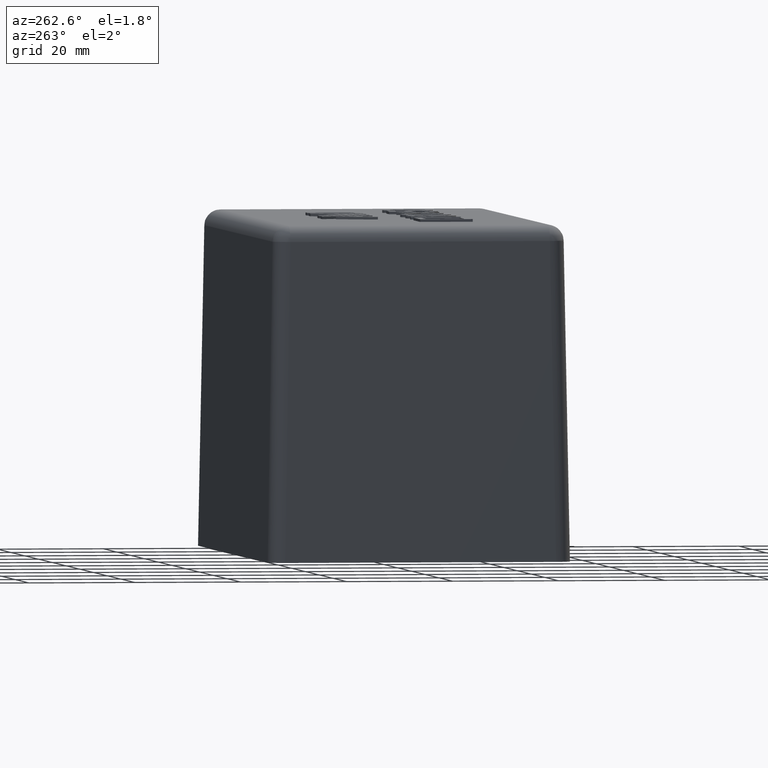
[diagram: clean part render]
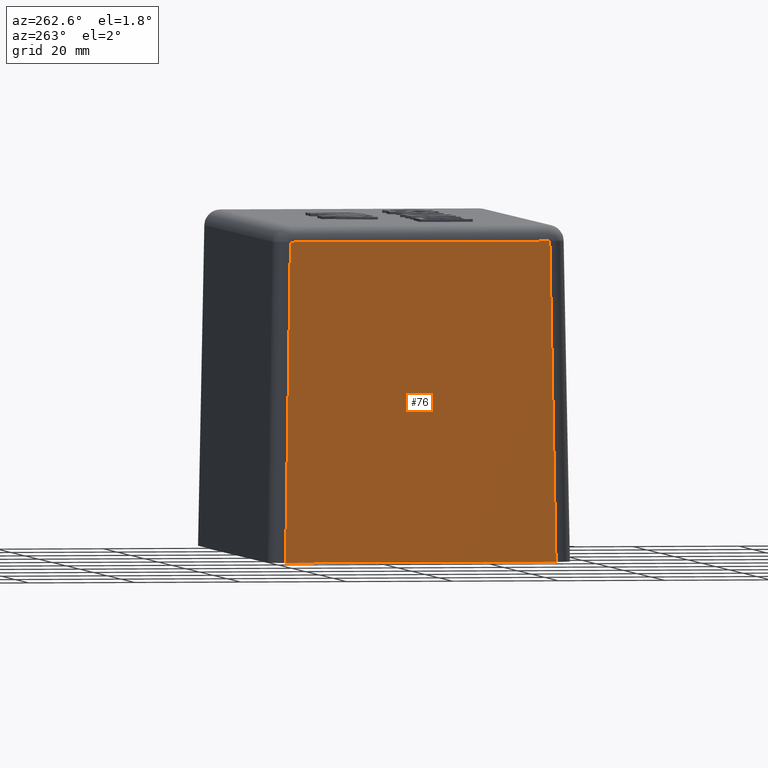
[diagram: same view with one face highlighted and labeled with its STEP entity id]
A machine part, auxiliary view. The second image highlights one B-rep face of the part: STEP entity #76.
In plain terms, the highlighted planar face has unit normal (-0.9998, 0, 0.0175).
Its self-contained STEP definition (entity closure, byte-faithful):
#76 = ADVANCED_FACE( '', ( #204 ), #205, .T. );
#204 = FACE_OUTER_BOUND( '', #455, .T. );
#205 = PLANE( '', #456 );
#455 = EDGE_LOOP( '', ( #773, #774, #775, #776 ) );
#456 = AXIS2_PLACEMENT_3D( '', #777, #778, #779 );
#773 = ORIENTED_EDGE( '', *, *, #1754, .T. );
#774 = ORIENTED_EDGE( '', *, *, #1755, .T. );
#775 = ORIENTED_EDGE( '', *, *, #1756, .T. );
#776 = ORIENTED_EDGE( '', *, *, #1757, .T. );
#777 = CARTESIAN_POINT( '', ( -53.0000000000000, -28.0000000000000, 30.0000000000000 ) );
#778 = DIRECTION( '', ( -0.999847695156391, 0.000000000000000, 0.0174524064372835 ) );
#779 = DIRECTION( '', ( 0.0174524064372835, 0.000000000000000, 0.999847695156391 ) );
#1754 = EDGE_CURVE( '', #2085, #2086, #2087, .F. );
#1755 = EDGE_CURVE( '', #2086, #2088, #2089, .T. );
#1756 = EDGE_CURVE( '', #2088, #2090, #2091, .F. );
#1757 = EDGE_CURVE( '', #2090, #2085, #2092, .F. );
#2085 = VERTEX_POINT( '', #2688 );
#2086 = VERTEX_POINT( '', #2689 );
#2087 = LINE( '', #2690, #2691 );
#2088 = VERTEX_POINT( '', #2692 );
#2089 = LINE( '', #2693, #2694 );
#2090 = VERTEX_POINT( '', #2695 );
#2091 = LINE( '', #2696, #2697 );
#2092 = LINE( '', #2698, #2699 );
#2688 = CARTESIAN_POINT( '', ( -53.5236519478465, 25.5241088623774, 0.000000000000000 ) );
#2689 = CARTESIAN_POINT( '', ( -53.5236519478465, -25.5241088623774, 0.000000000000000 ) );
#2690 = CARTESIAN_POINT( '', ( -53.5236519478465, -28.0000000000000, 0.000000000000000 ) );
#2691 = VECTOR( '', #3400, 1000.00000000000 );
#2692 = CARTESIAN_POINT( '', ( -52.4754341534909, -24.4758910680218, 60.0523572193119 ) );
#2693 = CARTESIAN_POINT( '', ( -53.0009133421097, -25.0013702566405, 29.9476746655798 ) );
#2694 = VECTOR( '', #3401, 1000.00000000000 );
#2695 = CARTESIAN_POINT( '', ( -52.4754341534909, 24.4758910680217, 60.0523572193119 ) );
#2696 = CARTESIAN_POINT( '', ( -52.4754341534909, 27.4239828573688, 60.0523572193119 ) );
#2697 = VECTOR( '', #3402, 1000.00000000000 );
#2698 = CARTESIAN_POINT( '', ( -52.9838616923465, 24.9843186068773, 30.9245630262525 ) );
#2699 = VECTOR( '', #3403, 1000.00000000000 );
#3400 = DIRECTION( '', ( 0.000000000000000, 1.00000000000000, 0.000000000000000 ) );
#3401 = DIRECTION( '', ( 0.0174497491606827, 0.0174497491606827, 0.999695459881887 ) );
#3402 = DIRECTION( '', ( 0.000000000000000, -1.00000000000000, 0.000000000000000 ) );
#3403 = DIRECTION( '', ( 0.0174497491606827, -0.0174497491606827, 0.999695459881887 ) );